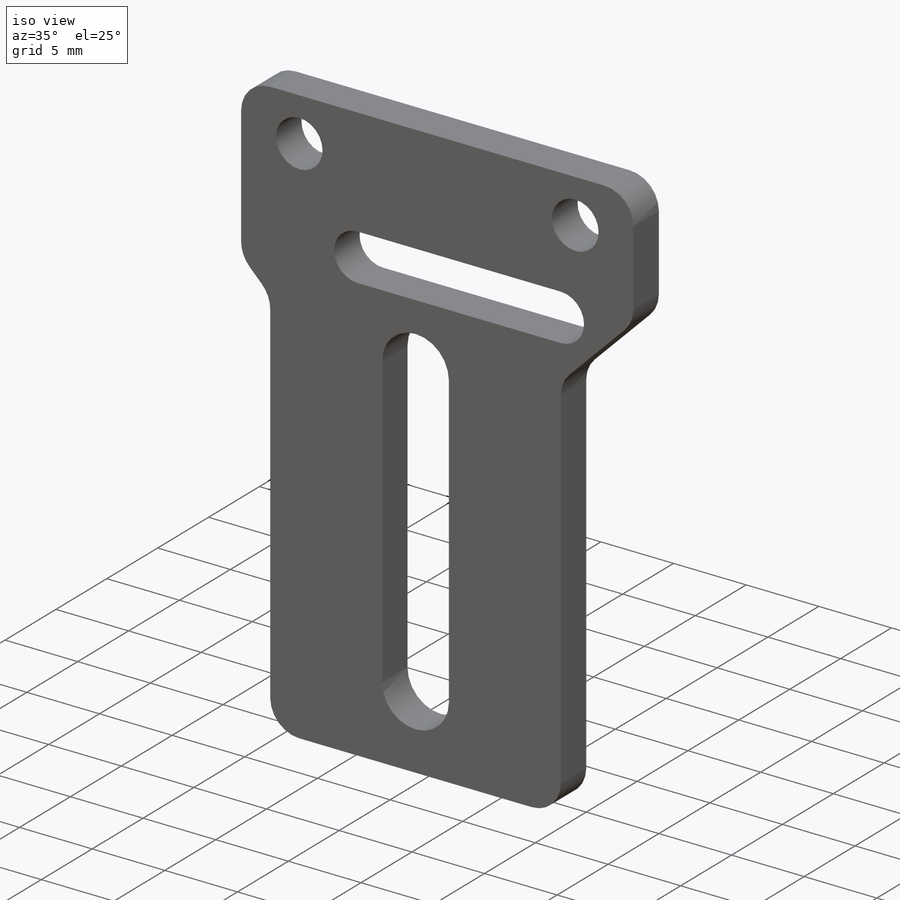
[diagram: iso view]
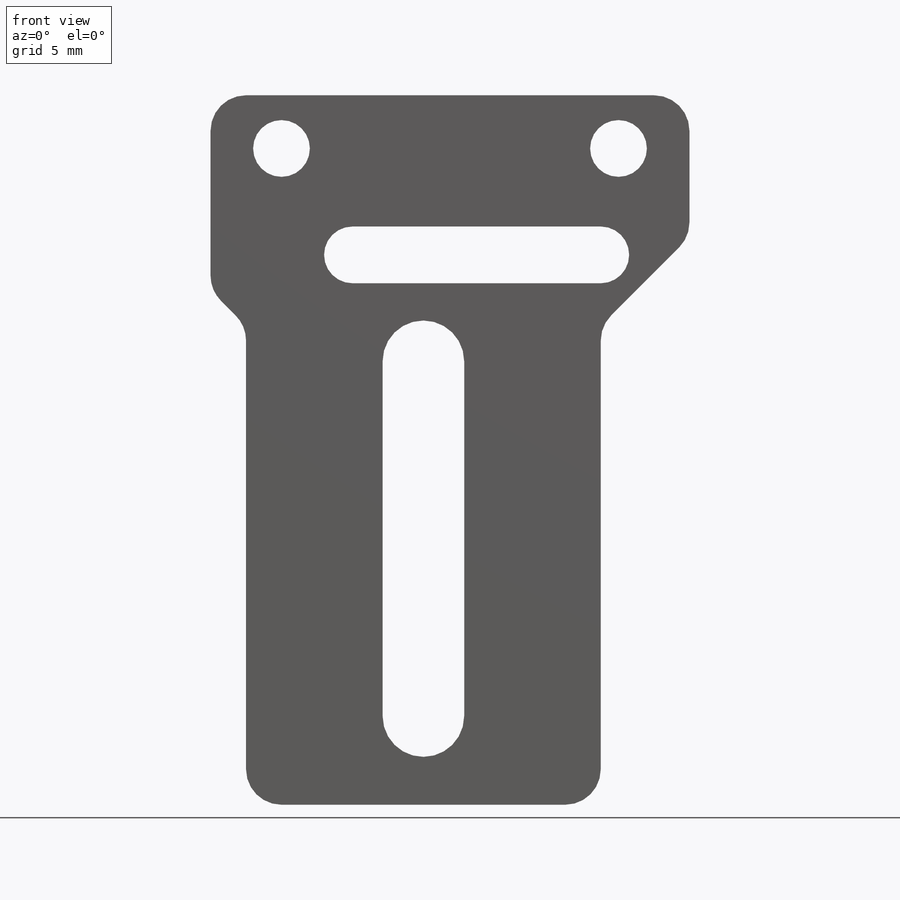
[diagram: front view]
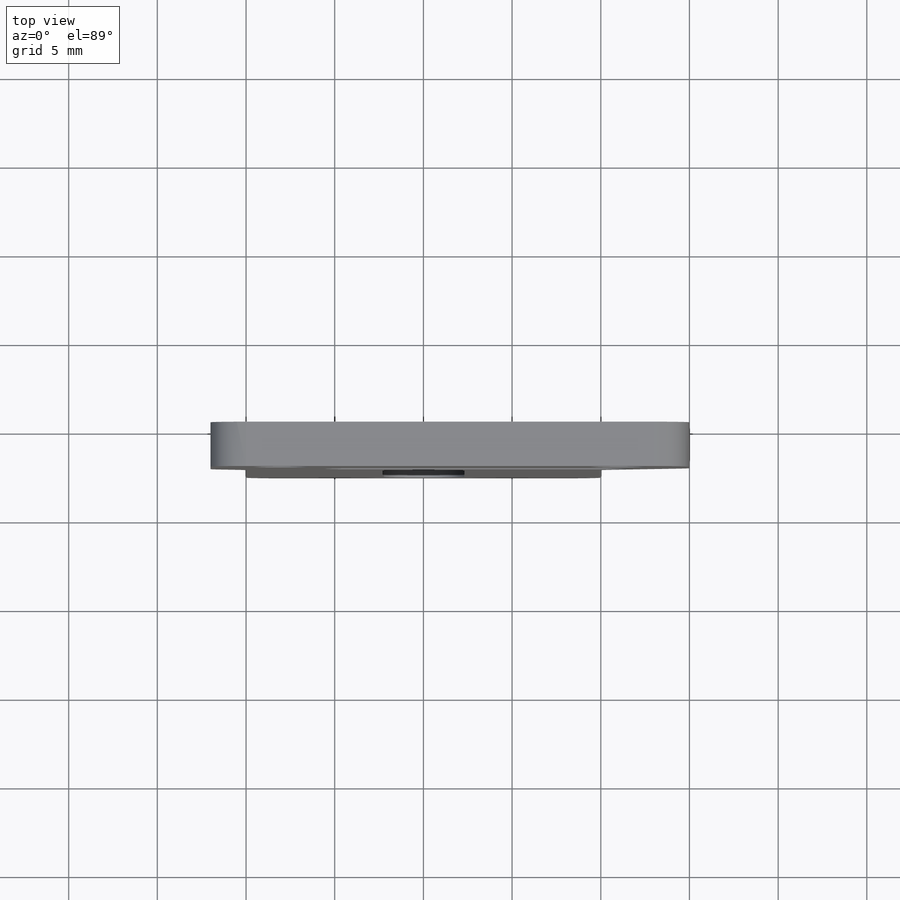
[diagram: top view]
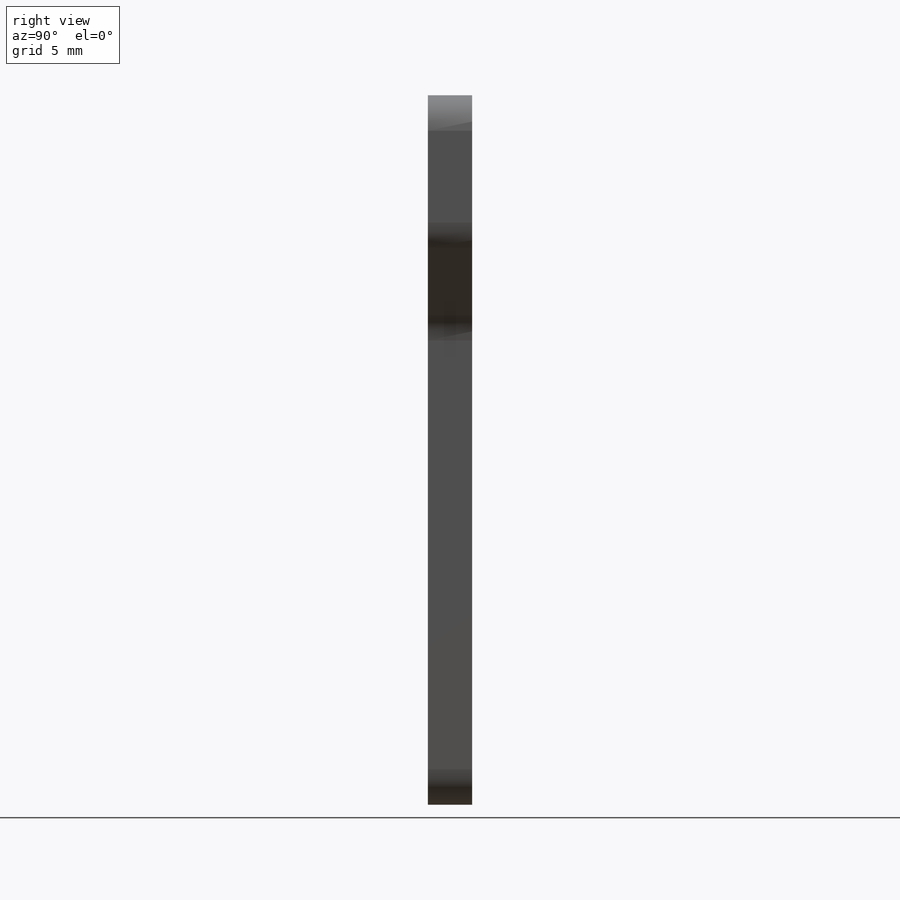
[diagram: right view]
SOLIDWORKS PART (.sldprt)
format: sldprt  version: not decoded by parser v0  size: 233,984 bytes
history: native  units: mm
features: sketch x5, cut_extrude x3, extrude x2, material x1, chamfer x1, fillet x1 (+11 scaffold rows collapsed)
feature tree (24):
  scaffold x11  (default folders/planes/origin — collapsed)
  material  "Material <not specified>"
  sketch  "Sketch1"  dims[D1=20.0mm D2=40.0mm]
  extrude  "Boss-Extrude1"  Depth=2.5mm
  sketch  "Sketch2"  dims[D1=8.0mm D2=8.0mm D3=2.0mm D4=5.0mm]
  extrude  "Boss-Extrude2"  Depth=2.5mm
  chamfer  "Chamfer1"  Distance=5mm Angle=45deg
  fillet  "Fillet1"  Radius=2mm
  sketch  "Sketch3"  dims[D1=2.3mm D2=10.0mm D3=5.0mm D4=20.0mm]
  cut_extrude  "Cut-Extrude1"  [1 undecoded]
  sketch  "Sketch4"  dims[D1=3.2mm D2=3.2mm D3=19.0mm D4=4.0mm D5=3.0mm D6=3.0mm]
  cut_extrude  "Cut-Extrude2"  [1 undecoded]
  sketch  "Sketch5"  dims[D4=1.6mm D1=6.0mm D2=14.0mm D3=5.0mm]
  cut_extrude  "Cut-Extrude3"  [1 undecoded]
decode coverage: 9 of 12 modeling features carry decoded parameters
note: 3 parameter values undecoded
summary: no parameter record found for 3 features
note: suppression state not decoded; provenance and decode notes live in map.json
